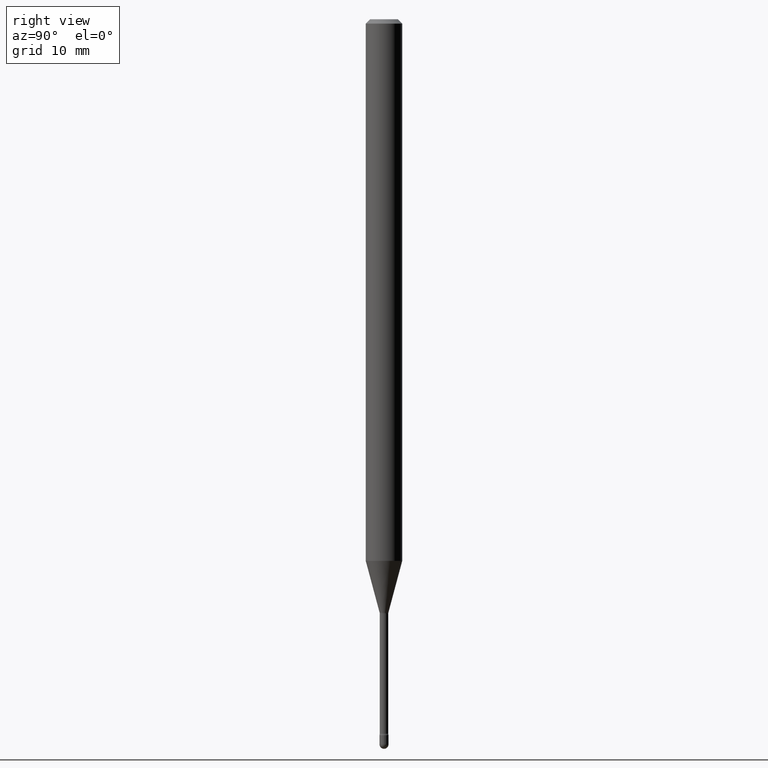
[diagram: clean part render]
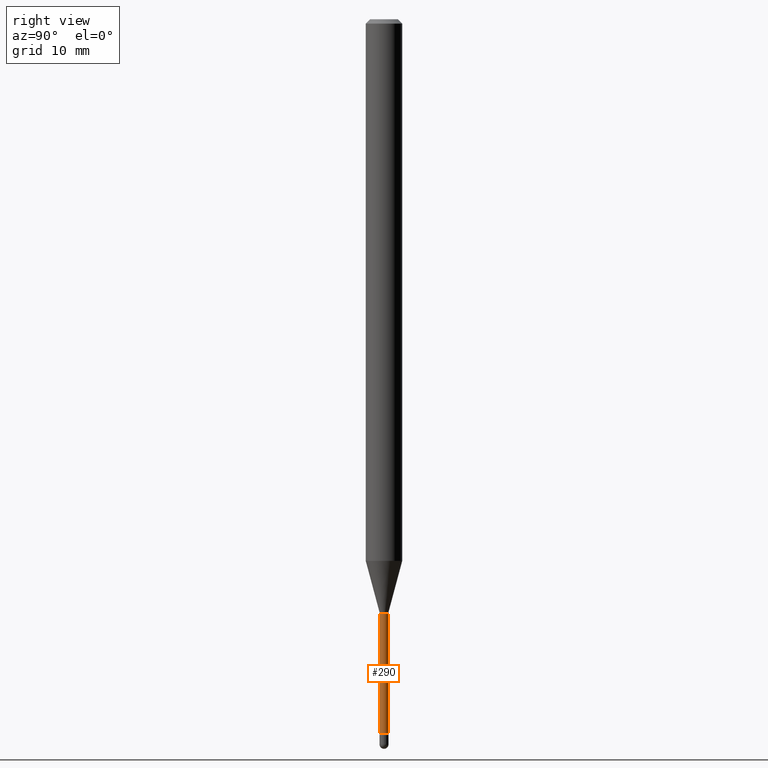
[diagram: same view with one face highlighted and labeled with its STEP entity id]
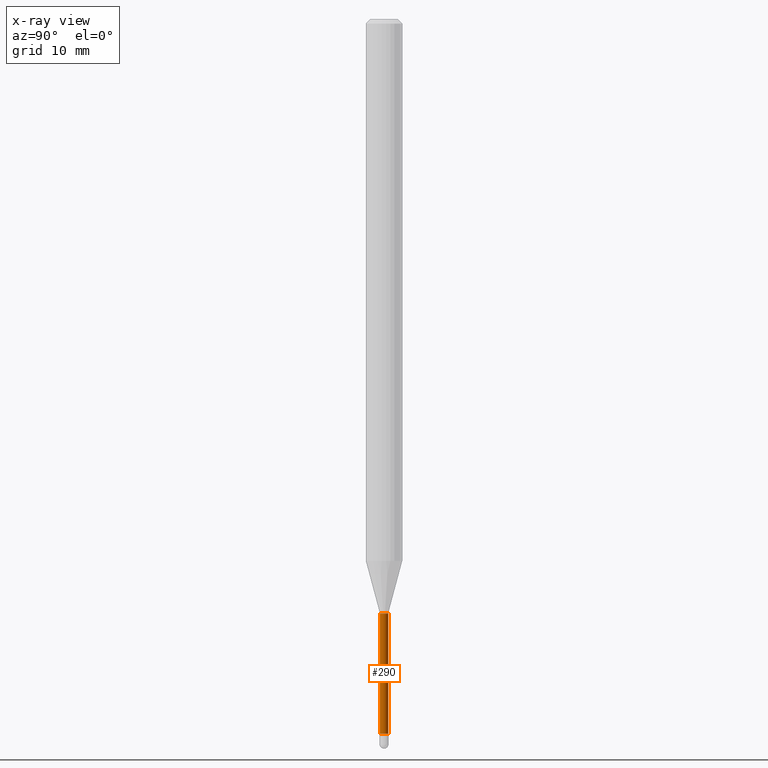
[diagram: x-ray of the same camera — body ghosted, the highlighted face saturated]
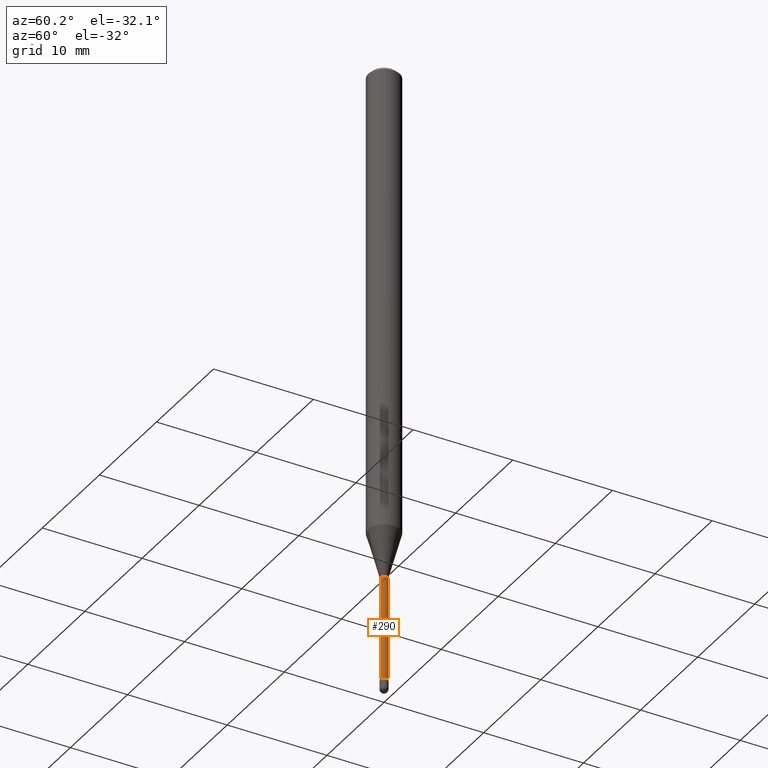
[diagram: same view with one face highlighted and labeled with its STEP entity id]
A machine part, right view. The second image highlights one B-rep face of the part: STEP entity #290.
The next image is the same camera in x-ray: the body ghosted, the highlighted face saturated — about 0% of this face is hidden behind the body in this view.
A second angle (auxiliary view) of the same face is appended — the face is thin or edge-on in the first view.
In plain terms, the highlighted cylindrical surface (edge-blend (fillet) strip) has radius 0.3696 mm, axis along (-0, 0, 1).
Its self-contained STEP definition (entity closure, byte-faithful):
#45 = CARTESIAN_POINT ( 'NONE',  ( 5.985892781288177865E-29, -8.546255139296640024E-15, -2.447746667724196357 ) ) ;
#51 = DIRECTION ( 'NONE',  ( -2.445470709946298928E-29, 3.491478612548805977E-15, 1.000000000000000000 ) ) ;
#66 = VECTOR ( 'NONE', #482, 39.37007874015748143 ) ;
#68 = FACE_OUTER_BOUND ( 'NONE', #383, .T. ) ;
#119 = CARTESIAN_POINT ( 'NONE',  ( -1.016021069602754986E-16, -0.01455000000000857344, -2.447746667724196357 ) ) ;
#120 = EDGE_CURVE ( 'NONE', #136, #293, #384, .T. ) ;
#126 = DIRECTION ( 'NONE',  ( -6.982962677686266711E-15, -1.000000000000000000, 0.000000000000000000 ) ) ;
#130 = ORIENTED_EDGE ( 'NONE', *, *, #550, .T. ) ;
#134 = CARTESIAN_POINT ( 'NONE',  ( 1.067590460480151308E-16, 0.01454999999999148294, -2.447746667724196357 ) ) ;
#136 = VERTEX_POINT ( 'NONE', #134 ) ;
#146 = CIRCLE ( 'NONE', #341, 0.01455000000000002819 ) ;
#226 = CYLINDRICAL_SURFACE ( 'NONE', #317, 0.01455000000000001605 ) ;
#280 = CARTESIAN_POINT ( 'NONE',  ( -1.169113584055446105E-44, 1.669184350826100908E-30, 4.780733988912460139E-16 ) ) ;
#283 = CIRCLE ( 'NONE', #295, 0.01455000000000000043 ) ;
#288 = DIRECTION ( 'NONE',  ( -2.445470709946298928E-29, 3.491478612548805977E-15, 1.000000000000000000 ) ) ;
#290 = ADVANCED_FACE ( 'NONE', ( #68 ), #226, .T. ) ;
#291 = CARTESIAN_POINT ( 'NONE',  ( -1.016021069603352671E-16, -0.01455000000000001605, 5.288744127038312523E-16 ) ) ;
#292 = VERTEX_POINT ( 'NONE', #119 ) ;
#293 = VERTEX_POINT ( 'NONE', #545 ) ;
#295 = AXIS2_PLACEMENT_3D ( 'NONE', #559, #557, #126 ) ;
#315 = DIRECTION ( 'NONE',  ( -6.982962677686265133E-15, -1.000000000000000000, 3.491478612548803610E-15 ) ) ;
#317 = AXIS2_PLACEMENT_3D ( 'NONE', #280, #401, #315 ) ;
#341 = AXIS2_PLACEMENT_3D ( 'NONE', #45, #51, #529 ) ;
#348 = CARTESIAN_POINT ( 'NONE',  ( 1.033839680530946664E-16, 0.01455000000000001605, 4.272723850786609234E-16 ) ) ;
#375 = VECTOR ( 'NONE', #288, 39.37007874015748143 ) ;
#383 = EDGE_LOOP ( 'NONE', ( #130, #420, #429, #422 ) ) ;
#384 = LINE ( 'NONE', #348, #66 ) ;
#401 = DIRECTION ( 'NONE',  ( -2.445470709946298928E-29, 3.491478612548805977E-15, 1.000000000000000000 ) ) ;
#420 = ORIENTED_EDGE ( 'NONE', *, *, #120, .T. ) ;
#422 = ORIENTED_EDGE ( 'NONE', *, *, #507, .F. ) ;
#427 = CARTESIAN_POINT ( 'NONE',  ( -1.016021069602853593E-16, -0.01455000000000711106, -2.036974787463810888 ) ) ;
#429 = ORIENTED_EDGE ( 'NONE', *, *, #501, .F. ) ;
#464 = VERTEX_POINT ( 'NONE', #427 ) ;
#482 = DIRECTION ( 'NONE',  ( -2.445470709946298928E-29, 3.491478612548805977E-15, 1.000000000000000000 ) ) ;
#501 = EDGE_CURVE ( 'NONE', #464, #293, #283, .T. ) ;
#507 = EDGE_CURVE ( 'NONE', #292, #464, #510, .T. ) ;
#510 = LINE ( 'NONE', #291, #375 ) ;
#529 = DIRECTION ( 'NONE',  ( -6.982962677686265922E-15, -1.000000000000000000, 0.000000000000000000 ) ) ;
#545 = CARTESIAN_POINT ( 'NONE',  ( 1.033839680531545582E-16, 0.01454999999999288980, -2.036974787463810888 ) ) ;
#550 = EDGE_CURVE ( 'NONE', #292, #136, #146, .T. ) ;
#557 = DIRECTION ( 'NONE',  ( -2.445470709946298928E-29, 3.491478612548805977E-15, 1.000000000000000000 ) ) ;
#559 = CARTESIAN_POINT ( 'NONE',  ( 4.981362179641837072E-29, -7.112053904731045127E-15, -2.036974787463810888 ) ) ;